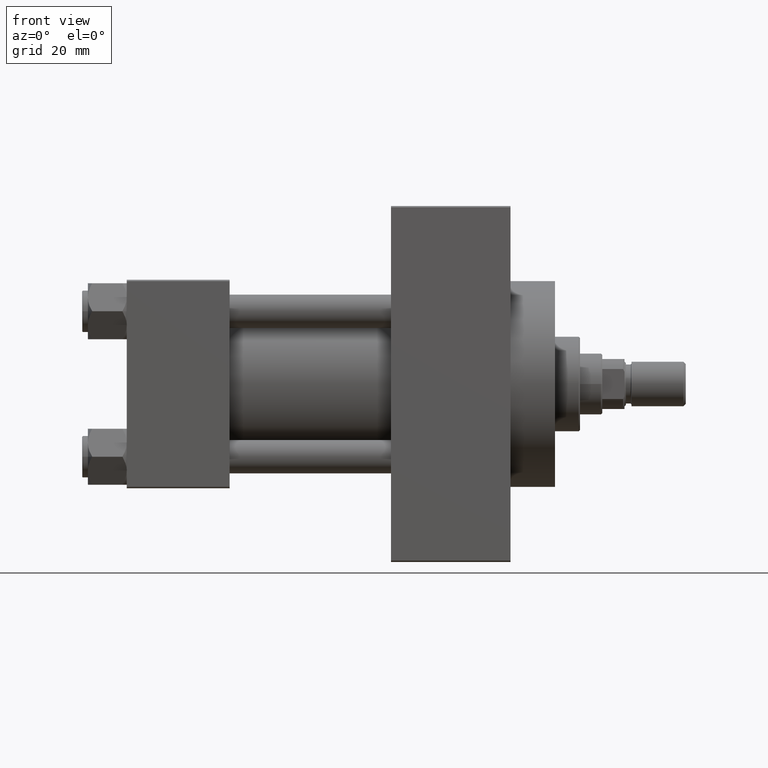
[diagram: clean part render]
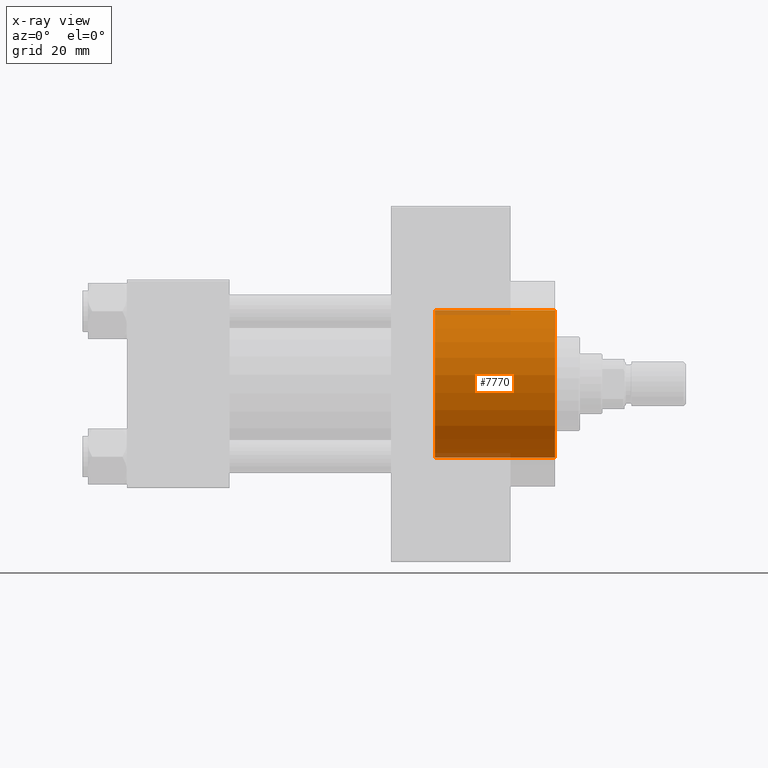
[diagram: x-ray — body ghosted, one internal face saturated and labeled with its STEP entity id]
A machine part, front view, then the same camera in x-ray: the body is ghosted and one INTERNAL B-rep face — a face not visible from any outside direction — is saturated and labeled: STEP entity #7770.
In plain terms, the highlighted cylindrical surface (partial cylindrical patch) has radius 26.5 mm, axis along (1, 0, 0).
Its self-contained STEP definition (entity closure, byte-faithful):
#4192 = VERTEX_POINT ( 'NONE', #16679 ) ;
#5671 = DIRECTION ( 'NONE',  ( 1.000000000000000000, -0.000000000000000000, -0.000000000000000000 ) ) ;
#6779 = VERTEX_POINT ( 'NONE', #10323 ) ;
#7115 = CYLINDRICAL_SURFACE ( 'NONE', #21743, 26.50000000000000355 ) ;
#7770 = ADVANCED_FACE ( 'NONE', ( #40157 ), #7115, .F. ) ;
#8507 = CIRCLE ( 'NONE', #33144, 26.50000000000000355 ) ;
#9131 = AXIS2_PLACEMENT_3D ( 'NONE', #33096, #17954, #40587 ) ;
#9885 = CARTESIAN_POINT ( 'NONE',  ( 110.7400000000000375, 0.000000000000000000, 0.000000000000000000 ) ) ;
#10106 = EDGE_CURVE ( 'NONE', #6779, #4192, #45450, .T. ) ;
#10323 = CARTESIAN_POINT ( 'NONE',  ( 110.7400000000000375, 3.245314017740486554E-15, 26.50000000000000355 ) ) ;
#16679 = CARTESIAN_POINT ( 'NONE',  ( 154.0000000000000284, 3.245314017740486554E-15, 26.50000000000000355 ) ) ;
#16775 = DIRECTION ( 'NONE',  ( 1.000000000000000000, -0.000000000000000000, -0.000000000000000000 ) ) ;
#16874 = ORIENTED_EDGE ( 'NONE', *, *, #21246, .T. ) ;
#16956 = CARTESIAN_POINT ( 'NONE',  ( 154.0000000000000284, 0.000000000000000000, -26.50000000000000355 ) ) ;
#17954 = DIRECTION ( 'NONE',  ( 1.000000000000000000, 0.000000000000000000, 0.000000000000000000 ) ) ;
#17970 = VECTOR ( 'NONE', #16775, 1000.000000000000000 ) ;
#18430 = CARTESIAN_POINT ( 'NONE',  ( 110.7400000000000375, 0.000000000000000000, -26.50000000000000355 ) ) ;
#18912 = ORIENTED_EDGE ( 'NONE', *, *, #10106, .T. ) ;
#19081 = ORIENTED_EDGE ( 'NONE', *, *, #29692, .F. ) ;
#21246 = EDGE_CURVE ( 'NONE', #4192, #29391, #26086, .T. ) ;
#21659 = VECTOR ( 'NONE', #5671, 1000.000000000000000 ) ;
#21743 = AXIS2_PLACEMENT_3D ( 'NONE', #21837, #40392, #40625 ) ;
#21837 = CARTESIAN_POINT ( 'NONE',  ( 110.7400000000000375, 0.000000000000000000, 0.000000000000000000 ) ) ;
#23852 = VERTEX_POINT ( 'NONE', #18430 ) ;
#26086 = CIRCLE ( 'NONE', #9131, 26.50000000000000355 ) ;
#26379 = ORIENTED_EDGE ( 'NONE', *, *, #41859, .F. ) ;
#29391 = VERTEX_POINT ( 'NONE', #16956 ) ;
#29692 = EDGE_CURVE ( 'NONE', #6779, #23852, #8507, .T. ) ;
#31832 = DIRECTION ( 'NONE',  ( 1.000000000000000000, 0.000000000000000000, 0.000000000000000000 ) ) ;
#32598 = EDGE_LOOP ( 'NONE', ( #19081, #18912, #16874, #26379 ) ) ;
#33096 = CARTESIAN_POINT ( 'NONE',  ( 154.0000000000000284, 0.000000000000000000, 0.000000000000000000 ) ) ;
#33144 = AXIS2_PLACEMENT_3D ( 'NONE', #9885, #31832, #42929 ) ;
#39430 = LINE ( 'NONE', #46663, #21659 ) ;
#40157 = FACE_OUTER_BOUND ( 'NONE', #32598, .T. ) ;
#40392 = DIRECTION ( 'NONE',  ( 1.000000000000000000, -0.000000000000000000, -0.000000000000000000 ) ) ;
#40587 = DIRECTION ( 'NONE',  ( 0.000000000000000000, 0.000000000000000000, -1.000000000000000000 ) ) ;
#40625 = DIRECTION ( 'NONE',  ( 0.000000000000000000, 0.000000000000000000, -1.000000000000000000 ) ) ;
#41859 = EDGE_CURVE ( 'NONE', #23852, #29391, #39430, .T. ) ;
#42929 = DIRECTION ( 'NONE',  ( 0.000000000000000000, 0.000000000000000000, -1.000000000000000000 ) ) ;
#45450 = LINE ( 'NONE', #45929, #17970 ) ;
#45929 = CARTESIAN_POINT ( 'NONE',  ( 110.7400000000000375, 3.245314017740486554E-15, 26.50000000000000355 ) ) ;
#46663 = CARTESIAN_POINT ( 'NONE',  ( 110.7400000000000375, 0.000000000000000000, -26.50000000000000355 ) ) ;